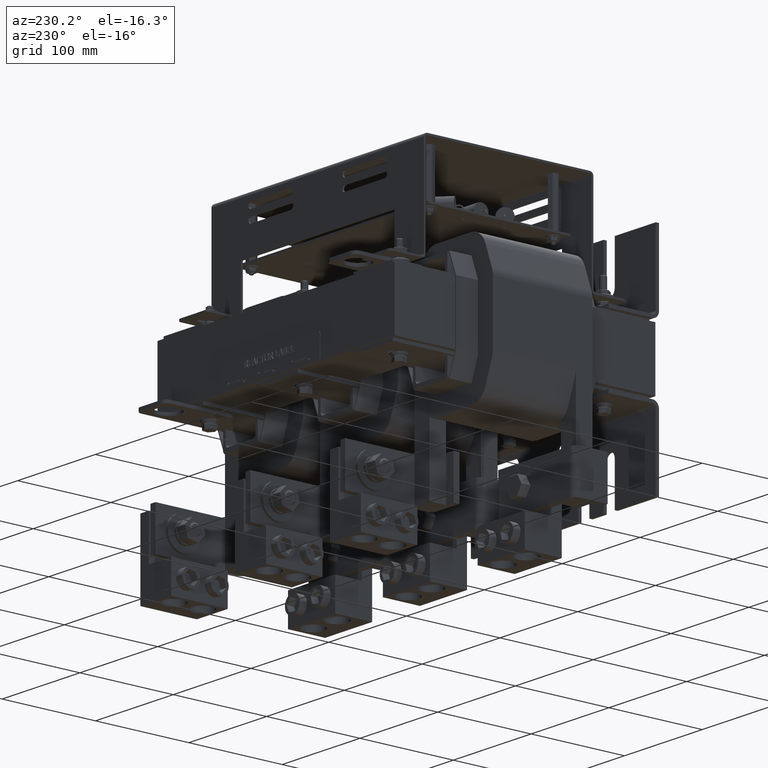
[diagram: clean part render]
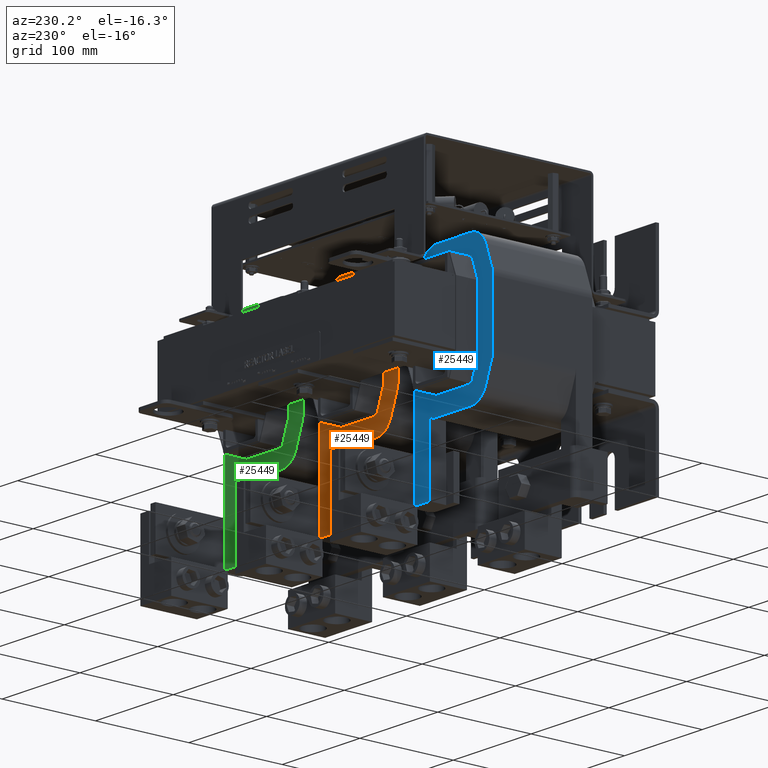
[diagram: same view with three faces highlighted in distinct colors, each labeled with its STEP entity id]
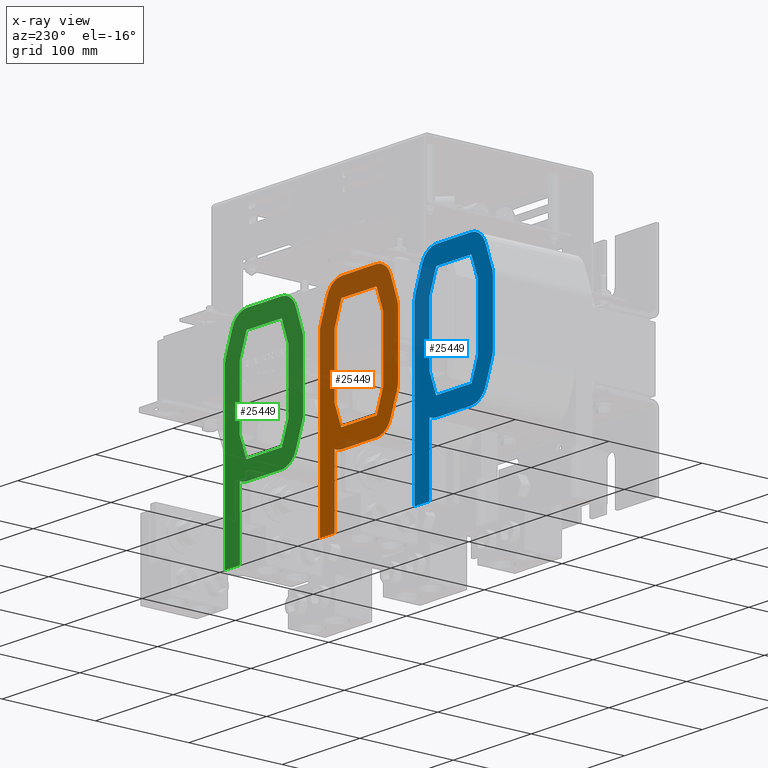
[diagram: x-ray of the same camera — body ghosted, the three highlighted faces saturated]
A machine part, auxiliary view with three faces highlighted in distinct colors.
The next image is the same camera in x-ray (body ghosted, the three faces saturated) — at least one of them is partly hidden behind the body in this view.
Their STEP definitions:

[orange] entity #25449 — the highlighted planar face has unit normal (-0, -1, -0).
#1757=FACE_BOUND('',#4401,.T.);
#2085=PLANE('',#27824);
#2946=FACE_OUTER_BOUND('',#4400,.T.);
#4400=EDGE_LOOP('',(#18188,#18189,#18190,#18191,#18192,#18193,#18194,#18195,
#18196,#18197,#18198,#18199,#18200,#18201,#18202,#18203,#18204,#18205,#18206,
#18207));
#4401=EDGE_LOOP('',(#18208,#18209,#18210,#18211,#18212,#18213,#18214,#18215,
#18216,#18217,#18218,#18219,#18220,#18221,#18222,#18223,#18224));
#6124=LINE('',#37335,#8527);
#6132=LINE('',#37353,#8535);
#6145=LINE('',#37385,#8548);
#6147=LINE('',#37389,#8550);
#6149=LINE('',#37393,#8552);
#6151=LINE('',#37397,#8554);
#6153=LINE('',#37401,#8556);
#6171=LINE('',#37448,#8574);
#6177=LINE('',#37462,#8580);
#6196=LINE('',#37527,#8599);
#6199=LINE('',#37535,#8602);
#6202=LINE('',#37543,#8605);
#6205=LINE('',#37551,#8608);
#6208=LINE('',#37559,#8611);
#6211=LINE('',#37566,#8614);
#6212=LINE('',#37569,#8615);
#6215=LINE('',#37576,#8618);
#6216=LINE('',#37581,#8619);
#6217=LINE('',#37584,#8620);
#6218=LINE('',#37588,#8621);
#6219=LINE('',#37592,#8622);
#6220=LINE('',#37596,#8623);
#8527=VECTOR('',#30332,0.393700787401575);
#8535=VECTOR('',#30344,0.393700787401575);
#8548=VECTOR('',#30371,0.393700787401575);
#8550=VECTOR('',#30375,0.393700787401575);
#8552=VECTOR('',#30379,0.393700787401575);
#8554=VECTOR('',#30383,0.393700787401575);
#8556=VECTOR('',#30387,0.393700787401575);
#8574=VECTOR('',#30431,0.393700787401575);
#8580=VECTOR('',#30443,0.393700787401575);
#8599=VECTOR('',#30500,0.393700787401575);
#8602=VECTOR('',#30509,0.393700787401575);
#8605=VECTOR('',#30518,0.393700787401575);
#8608=VECTOR('',#30527,0.393700787401575);
#8611=VECTOR('',#30536,0.393700787401575);
#8614=VECTOR('',#30545,0.393700787401575);
#8615=VECTOR('',#30548,0.393700787401575);
#8618=VECTOR('',#30557,0.393700787401575);
#8619=VECTOR('',#30562,0.393700787401575);
#8620=VECTOR('',#30565,0.393700787401575);
#8621=VECTOR('',#30568,0.393700787401575);
#8622=VECTOR('',#30571,0.393700787401575);
#8623=VECTOR('',#30574,0.393700787401575);
#10820=CIRCLE('',#27780,0.7799726404675);
#10824=CIRCLE('',#27788,0.768230282177347);
#10837=CIRCLE('',#27803,0.0285007705441579);
#10838=CIRCLE('',#27806,0.018230282177347);
#10839=CIRCLE('',#27809,0.0181194556531244);
#10840=CIRCLE('',#27812,0.0342087729675568);
#10841=CIRCLE('',#27815,0.0441353844211373);
#10842=CIRCLE('',#27818,0.0308204582025185);
#10843=CIRCLE('',#27822,0.0300049962999232);
#10844=CIRCLE('',#27825,0.780004996299923);
#10845=CIRCLE('',#27826,0.778500770544158);
#10846=CIRCLE('',#27827,0.768119455653124);
#10847=CIRCLE('',#27828,0.784208772967557);
#10848=CIRCLE('',#27829,0.794135384421137);
#10849=CIRCLE('',#27830,0.780820458202519);
#11699=VERTEX_POINT('',#37331);
#11701=VERTEX_POINT('',#37334);
#11707=VERTEX_POINT('',#37349);
#11709=VERTEX_POINT('',#37352);
#11720=VERTEX_POINT('',#37381);
#11721=VERTEX_POINT('',#37383);
#11722=VERTEX_POINT('',#37387);
#11723=VERTEX_POINT('',#37391);
#11724=VERTEX_POINT('',#37395);
#11725=VERTEX_POINT('',#37399);
#11741=VERTEX_POINT('',#37447);
#11745=VERTEX_POINT('',#37459);
#11746=VERTEX_POINT('',#37461);
#11748=VERTEX_POINT('',#37467);
#11771=VERTEX_POINT('',#37520);
#11772=VERTEX_POINT('',#37522);
#11773=VERTEX_POINT('',#37526);
#11774=VERTEX_POINT('',#37530);
#11775=VERTEX_POINT('',#37534);
#11776=VERTEX_POINT('',#37538);
#11777=VERTEX_POINT('',#37542);
#11778=VERTEX_POINT('',#37546);
#11779=VERTEX_POINT('',#37550);
#11780=VERTEX_POINT('',#37554);
#11781=VERTEX_POINT('',#37558);
#11782=VERTEX_POINT('',#37562);
#11783=VERTEX_POINT('',#37568);
#11784=VERTEX_POINT('',#37572);
#11785=VERTEX_POINT('',#37578);
#11786=VERTEX_POINT('',#37580);
#11787=VERTEX_POINT('',#37583);
#11788=VERTEX_POINT('',#37585);
#11789=VERTEX_POINT('',#37587);
#11790=VERTEX_POINT('',#37589);
#11791=VERTEX_POINT('',#37591);
#11792=VERTEX_POINT('',#37593);
#11793=VERTEX_POINT('',#37595);
#14148=EDGE_CURVE('',#11701,#11699,#6124,.T.);
#14156=EDGE_CURVE('',#11707,#11709,#6132,.T.);
#14172=EDGE_CURVE('',#11720,#11721,#6145,.T.);
#14174=EDGE_CURVE('',#11699,#11722,#6147,.T.);
#14176=EDGE_CURVE('',#11721,#11723,#6149,.T.);
#14178=EDGE_CURVE('',#11724,#11701,#6151,.T.);
#14180=EDGE_CURVE('',#11725,#11709,#6153,.T.);
#14199=EDGE_CURVE('',#11724,#11707,#10820,.T.);
#14203=EDGE_CURVE('',#11725,#11741,#6171,.T.);
#14210=EDGE_CURVE('',#11745,#11746,#6177,.T.);
#14214=EDGE_CURVE('',#11748,#11745,#10824,.T.);
#14242=EDGE_CURVE('',#11772,#11771,#10837,.T.);
#14244=EDGE_CURVE('',#11773,#11772,#6196,.T.);
#14246=EDGE_CURVE('',#11774,#11773,#10838,.T.);
#14248=EDGE_CURVE('',#11775,#11774,#6199,.T.);
#14250=EDGE_CURVE('',#11776,#11775,#10839,.T.);
#14252=EDGE_CURVE('',#11777,#11776,#6202,.T.);
#14254=EDGE_CURVE('',#11778,#11777,#10840,.T.);
#14256=EDGE_CURVE('',#11779,#11778,#6205,.T.);
#14258=EDGE_CURVE('',#11780,#11779,#10841,.T.);
#14260=EDGE_CURVE('',#11781,#11780,#6208,.T.);
#14262=EDGE_CURVE('',#11782,#11781,#10842,.T.);
#14264=EDGE_CURVE('',#11723,#11782,#6211,.T.);
#14265=EDGE_CURVE('',#11783,#11720,#6212,.T.);
#14267=EDGE_CURVE('',#11784,#11783,#10843,.T.);
#14269=EDGE_CURVE('',#11771,#11784,#6215,.T.);
#14270=EDGE_CURVE('',#11785,#11722,#10844,.T.);
#14271=EDGE_CURVE('',#11786,#11785,#6216,.T.);
#14272=EDGE_CURVE('',#11746,#11786,#10845,.T.);
#14273=EDGE_CURVE('',#11787,#11748,#6217,.T.);
#14274=EDGE_CURVE('',#11788,#11787,#10846,.T.);
#14275=EDGE_CURVE('',#11789,#11788,#6218,.T.);
#14276=EDGE_CURVE('',#11790,#11789,#10847,.T.);
#14277=EDGE_CURVE('',#11791,#11790,#6219,.T.);
#14278=EDGE_CURVE('',#11792,#11791,#10848,.T.);
#14279=EDGE_CURVE('',#11793,#11792,#6220,.T.);
#14280=EDGE_CURVE('',#11741,#11793,#10849,.T.);
#18188=ORIENTED_EDGE('',*,*,#14270,.F.);
#18189=ORIENTED_EDGE('',*,*,#14271,.F.);
#18190=ORIENTED_EDGE('',*,*,#14272,.F.);
#18191=ORIENTED_EDGE('',*,*,#14210,.F.);
#18192=ORIENTED_EDGE('',*,*,#14214,.F.);
#18193=ORIENTED_EDGE('',*,*,#14273,.F.);
#18194=ORIENTED_EDGE('',*,*,#14274,.F.);
#18195=ORIENTED_EDGE('',*,*,#14275,.F.);
#18196=ORIENTED_EDGE('',*,*,#14276,.F.);
#18197=ORIENTED_EDGE('',*,*,#14277,.F.);
#18198=ORIENTED_EDGE('',*,*,#14278,.F.);
#18199=ORIENTED_EDGE('',*,*,#14279,.F.);
#18200=ORIENTED_EDGE('',*,*,#14280,.F.);
#18201=ORIENTED_EDGE('',*,*,#14203,.F.);
#18202=ORIENTED_EDGE('',*,*,#14180,.T.);
#18203=ORIENTED_EDGE('',*,*,#14156,.F.);
#18204=ORIENTED_EDGE('',*,*,#14199,.F.);
#18205=ORIENTED_EDGE('',*,*,#14178,.T.);
#18206=ORIENTED_EDGE('',*,*,#14148,.T.);
#18207=ORIENTED_EDGE('',*,*,#14174,.T.);
#18208=ORIENTED_EDGE('',*,*,#14172,.T.);
#18209=ORIENTED_EDGE('',*,*,#14176,.T.);
#18210=ORIENTED_EDGE('',*,*,#14264,.T.);
#18211=ORIENTED_EDGE('',*,*,#14262,.T.);
#18212=ORIENTED_EDGE('',*,*,#14260,.T.);
#18213=ORIENTED_EDGE('',*,*,#14258,.T.);
#18214=ORIENTED_EDGE('',*,*,#14256,.T.);
#18215=ORIENTED_EDGE('',*,*,#14254,.T.);
#18216=ORIENTED_EDGE('',*,*,#14252,.T.);
#18217=ORIENTED_EDGE('',*,*,#14250,.T.);
#18218=ORIENTED_EDGE('',*,*,#14248,.T.);
#18219=ORIENTED_EDGE('',*,*,#14246,.T.);
#18220=ORIENTED_EDGE('',*,*,#14244,.T.);
#18221=ORIENTED_EDGE('',*,*,#14242,.T.);
#18222=ORIENTED_EDGE('',*,*,#14269,.T.);
#18223=ORIENTED_EDGE('',*,*,#14267,.T.);
#18224=ORIENTED_EDGE('',*,*,#14265,.T.);
#25449=ADVANCED_FACE('',(#2946,#1757),#2085,.F.);
#27780=AXIS2_PLACEMENT_3D('',#37440,#30423,#30424);
#27788=AXIS2_PLACEMENT_3D('',#37469,#30450,#30451);
#27803=AXIS2_PLACEMENT_3D('',#37523,#30495,#30496);
#27806=AXIS2_PLACEMENT_3D('',#37531,#30504,#30505);
#27809=AXIS2_PLACEMENT_3D('',#37539,#30513,#30514);
#27812=AXIS2_PLACEMENT_3D('',#37547,#30522,#30523);
#27815=AXIS2_PLACEMENT_3D('',#37555,#30531,#30532);
#27818=AXIS2_PLACEMENT_3D('',#37563,#30540,#30541);
#27822=AXIS2_PLACEMENT_3D('',#37573,#30552,#30553);
#27824=AXIS2_PLACEMENT_3D('',#37577,#30558,#30559);
#27825=AXIS2_PLACEMENT_3D('',#37579,#30560,#30561);
#27826=AXIS2_PLACEMENT_3D('',#37582,#30563,#30564);
#27827=AXIS2_PLACEMENT_3D('',#37586,#30566,#30567);
#27828=AXIS2_PLACEMENT_3D('',#37590,#30569,#30570);
#27829=AXIS2_PLACEMENT_3D('',#37594,#30572,#30573);
#27830=AXIS2_PLACEMENT_3D('',#37597,#30575,#30576);
#30332=DIRECTION('',(0.999999785429498,-0.000655088511442405,-9.20558386450323E-37));
#30344=DIRECTION('',(-0.000655088511442343,-0.999999785429498,0.));
#30371=DIRECTION('',(-0.000655088511442343,-0.999999785429498,0.));
#30375=DIRECTION('',(-0.000655088511442343,-0.999999785429498,0.));
#30379=DIRECTION('',(-0.999999785429498,0.000655088511442344,0.));
#30383=DIRECTION('',(0.000655088511442405,0.999999785429498,0.));
#30387=DIRECTION('',(-0.999999785429498,0.000655088511442344,0.));
#30423=DIRECTION('center_axis',(0.,0.,1.));
#30424=DIRECTION('ref_axis',(-0.937440761188099,0.348144825127529,0.));
#30431=DIRECTION('',(0.000108107634008213,-0.99999999415637,0.));
#30443=DIRECTION('',(-0.343377976362155,0.939197298414679,0.));
#30450=DIRECTION('center_axis',(0.,0.,1.));
#30451=DIRECTION('ref_axis',(0.999996915151978,-0.00248388536915243,0.));
#30495=DIRECTION('center_axis',(0.,0.,1.));
#30496=DIRECTION('ref_axis',(0.944876573169171,0.327426726881121,0.));
#30500=DIRECTION('',(-0.343377976362155,0.939197298414679,0.));
#30504=DIRECTION('center_axis',(0.,0.,1.));
#30505=DIRECTION('ref_axis',(0.999884770282325,-0.0151804531375525,0.));
#30509=DIRECTION('',(0.000171792120084277,0.999999985243734,0.));
#30513=DIRECTION('center_axis',(0.,0.,1.));
#30514=DIRECTION('ref_axis',(0.955332821155121,-0.295532063952117,0.));
#30518=DIRECTION('',(0.340289156967384,0.940320843994446,0.));
#30522=DIRECTION('center_axis',(0.,0.,1.));
#30523=DIRECTION('ref_axis',(0.0908520889796674,-0.995864397359415,0.));
#30527=DIRECTION('',(0.999999999351584,-3.60115427070881E-5,0.));
#30531=DIRECTION('center_axis',(0.,0.,1.));
#30532=DIRECTION('ref_axis',(-0.974422836775988,-0.224722351290288,0.));
#30536=DIRECTION('',(0.341450656940083,-0.939899701497551,0.));
#30540=DIRECTION('center_axis',(0.,0.,1.));
#30541=DIRECTION('ref_axis',(-0.999981239146098,0.00612546780528439,0.));
#30545=DIRECTION('',(0.000108107626538291,-0.999999994156371,0.));
#30548=DIRECTION('',(-0.348144825127529,-0.937440761188099,0.));
#30552=DIRECTION('center_axis',(0.,0.,1.));
#30553=DIRECTION('ref_axis',(0.000655088511427471,0.999999785429498,0.));
#30557=DIRECTION('',(-0.999999785429498,0.00065508851144239,0.));
#30558=DIRECTION('center_axis',(0.,0.,1.));
#30559=DIRECTION('ref_axis',(1.,0.,0.));
#30560=DIRECTION('center_axis',(0.,0.,1.));
#30561=DIRECTION('ref_axis',(0.000655088511441844,0.999999785429498,0.));
#30562=DIRECTION('',(-0.999999785429498,0.000655088511442344,0.));
#30563=DIRECTION('center_axis',(0.,0.,1.));
#30564=DIRECTION('ref_axis',(0.938079916076944,0.346418924213261,0.));
#30565=DIRECTION('',(0.000171792120084635,0.999999985243734,0.));
#30566=DIRECTION('center_axis',(0.,0.,1.));
#30567=DIRECTION('ref_axis',(0.93782886534404,-0.347097996720683,0.));
#30568=DIRECTION('',(0.340289156967384,0.940320843994446,0.));
#30569=DIRECTION('center_axis',(0.,0.,1.));
#30570=DIRECTION('ref_axis',(0.0189655633861012,-0.999820137527469,0.));
#30571=DIRECTION('',(0.999999999351584,-3.60115427072337E-5,0.));
#30572=DIRECTION('center_axis',(0.,0.,1.));
#30573=DIRECTION('ref_axis',(-0.94931018365161,-0.314340858329533,0.));
#30574=DIRECTION('',(0.341450656940083,-0.939899701497551,0.));
#30575=DIRECTION('center_axis',(0.,0.,1.));
#30576=DIRECTION('ref_axis',(-0.999999361148014,0.00113035550344365,0.));
#37331=CARTESIAN_POINT('',(-0.0301239171433851,6.91025072926536,-2.1));
#37334=CARTESIAN_POINT('',(-0.781991763706727,6.91074326935945,-2.1));
#37335=CARTESIAN_POINT('',(-0.0301239171433851,6.91025072926536,-2.1));
#37349=CARTESIAN_POINT('',(-0.784880598404627,2.50090547250795,-2.1));
#37352=CARTESIAN_POINT('',(-0.785103434136078,2.16074428856934,-2.1));
#37353=CARTESIAN_POINT('',(-0.783793257113193,4.16074385942833,-2.1));
#37381=CARTESIAN_POINT('',(-0.0330055375071033,2.51142569253406,-2.1));
#37383=CARTESIAN_POINT('',(-0.033235587572736,2.16025174847524,-2.1));
#37385=CARTESIAN_POINT('',(-0.0319254105498513,4.16025131933424,-2.1));
#37387=CARTESIAN_POINT('',(-0.031981069216059,4.07528775594891,-2.1));
#37389=CARTESIAN_POINT('',(-0.0319254105498513,4.16025131933424,-2.1));
#37391=CARTESIAN_POINT('',(-0.0348437668513175,2.16025280197524,-2.1));
#37393=CARTESIAN_POINT('',(-0.033235587572736,2.16025174847525,-2.1));
#37395=CARTESIAN_POINT('',(-0.784880207741646,2.50150182382656,-2.1));
#37397=CARTESIAN_POINT('',(-0.783793257113194,4.16074385942833,-2.1));
#37399=CARTESIAN_POINT('',(-0.78484382436525,2.16074411850192,-2.1));
#37401=CARTESIAN_POINT('',(-0.033235587572736,2.16025174847525,-2.1));
#37440=CARTESIAN_POINT('Origin',(-0.00490796261243304,2.5009908728599,-2.1));
#37447=CARTESIAN_POINT('',(-0.784610143968636,-0.000809016876357775,-2.1));
#37448=CARTESIAN_POINT('',(-0.784880598404627,2.50090547250795,-2.1));
#37459=CARTESIAN_POINT('',(3.12724292863744,2.76970837907586,-2.1));
#37461=CARTESIAN_POINT('',(2.80537815845659,3.65006339139002,-2.1));
#37462=CARTESIAN_POINT('',(3.12724292863744,2.76970837907586,-2.1));
#37467=CARTESIAN_POINT('',(3.1749362941218,2.50132742035554,-2.1));
#37469=CARTESIAN_POINT('Origin',(2.40670838181812,2.50323561631358,-2.1));
#37520=CARTESIAN_POINT('',(2.0756801399679,3.40887048992728,-2.1));
#37522=CARTESIAN_POINT('',(2.10201193136313,3.38970790597178,-2.1));
#37523=CARTESIAN_POINT('Origin',(2.07508222095869,3.38037599195892,-2.1));
#37526=CARTESIAN_POINT('',(2.42397622895945,2.50908066921064,-2.1));
#37527=CARTESIAN_POINT('',(2.396082341599,2.5853752060029,-2.1));
#37530=CARTESIAN_POINT('',(2.42493656332521,2.5029588723693,-2.1));
#37531=CARTESIAN_POINT('Origin',(2.40670838181812,2.50323561631358,-2.1));
#37534=CARTESIAN_POINT('',(2.42450604545494,-0.00308077428525311,-2.1));
#37535=CARTESIAN_POINT('',(2.42482760491797,1.86871321796757,-2.1));
#37538=CARTESIAN_POINT('',(2.42370012493949,-0.0087879137502401,-2.1));
#37539=CARTESIAN_POINT('Origin',(2.4063900142526,-0.00343303362338343,-2.1));
#37542=CARTESIAN_POINT('',(2.09392845506983,-0.920045791317628,-2.1));
#37543=CARTESIAN_POINT('',(2.55154693340086,0.344491103147483,-2.1));
#37546=CARTESIAN_POINT('',(2.0635182179735,-0.9472740806983,-2.1));
#37547=CARTESIAN_POINT('Origin',(2.06041027948797,-0.913206781622558,-2.1));
#37550=CARTESIAN_POINT('',(0.333653867491344,-0.947211785614324,-2.1));
#37551=CARTESIAN_POINT('',(1.62959711190879,-0.947258454529847,-2.1));
#37554=CARTESIAN_POINT('',(0.294562105045828,-0.913168569199795,-2.1));
#37555=CARTESIAN_POINT('Origin',(0.337568631535672,-0.903250361837576,-2.1));
#37558=CARTESIAN_POINT('',(-0.0330944654954606,-0.0112393838665542,-2.1));
#37559=CARTESIAN_POINT('',(0.00244283309246462,-0.109061706524091,-2.1));
#37562=CARTESIAN_POINT('',(-0.0346100645792228,-0.00150283185402474,-2.1));
#37563=CARTESIAN_POINT('Origin',(-0.00379018459481753,-0.00169162157848839,
-2.1));
#37566=CARTESIAN_POINT('',(-0.0346768777141815,0.616521415904538,-2.1));
#37568=CARTESIAN_POINT('',(0.293448665620288,3.39046066472041,-2.1));
#37569=CARTESIAN_POINT('',(-0.166882576943975,2.15093837605783,-2.1));
#37572=CARTESIAN_POINT('',(0.321596228118829,3.4100195703926,-2.1));
#37573=CARTESIAN_POINT('Origin',(0.321576572190468,3.38001458053086,-2.1));
#37576=CARTESIAN_POINT('',(0.759387736849627,3.40973277814329,-2.1));
#37577=CARTESIAN_POINT('Origin',(1.19575458020407,1.23467868991142,-2.1));
#37578=CARTESIAN_POINT('',(0.322087544502411,4.16001940946472,-2.1));
#37579=CARTESIAN_POINT('Origin',(0.321576572190468,3.38001458053086,-2.1));
#37580=CARTESIAN_POINT('',(2.07861974913728,4.15886872515059,-2.1));
#37581=CARTESIAN_POINT('',(2.07861974913728,4.15886872515059,-2.1));
#37582=CARTESIAN_POINT('Origin',(2.07508222095869,3.38037599195892,-2.1));
#37583=CARTESIAN_POINT('',(3.17450637084772,-0.00125108864530396,-2.1));
#37584=CARTESIAN_POINT('',(3.17450637084772,-0.00125108864530396,-2.1));
#37585=CARTESIAN_POINT('',(3.12675461179645,-0.270045757922764,-2.1));
#37586=CARTESIAN_POINT('Origin',(2.4063900142526,-0.00343303362338343,-2.1));
#37587=CARTESIAN_POINT('',(2.80560250656337,-1.15748519717678,-2.1));
#37588=CARTESIAN_POINT('',(2.80560250656337,-1.15748519717678,-2.1));
#37589=CARTESIAN_POINT('',(2.07528324067962,-1.69727450486123,-2.1));
#37590=CARTESIAN_POINT('Origin',(2.06041027948797,-0.913206781622558,-2.1));
#37591=CARTESIAN_POINT('',(0.320925512109393,-1.69721132773292,-2.1));
#37592=CARTESIAN_POINT('',(0.320925512109393,-1.69721132773292,-2.1));
#37593=CARTESIAN_POINT('',(-0.416312176093399,-1.15287956020637,-2.1));
#37594=CARTESIAN_POINT('Origin',(0.337568631535672,-0.903250361837576,-2.1));
#37595=CARTESIAN_POINT('',(-0.73589293719982,-0.273180382995548,-2.1));
#37596=CARTESIAN_POINT('',(-0.73589293719982,-0.273180382995548,-2.1));
#37597=CARTESIAN_POINT('Origin',(-0.00379018459481753,-0.00169162157848839,
-2.1));

[blue] entity #25449 — the highlighted planar face has unit normal (-0, -1, -0).
#1757=FACE_BOUND('',#4401,.T.);
#2085=PLANE('',#27824);
#2946=FACE_OUTER_BOUND('',#4400,.T.);
#4400=EDGE_LOOP('',(#18188,#18189,#18190,#18191,#18192,#18193,#18194,#18195,
#18196,#18197,#18198,#18199,#18200,#18201,#18202,#18203,#18204,#18205,#18206,
#18207));
#4401=EDGE_LOOP('',(#18208,#18209,#18210,#18211,#18212,#18213,#18214,#18215,
#18216,#18217,#18218,#18219,#18220,#18221,#18222,#18223,#18224));
#6124=LINE('',#37335,#8527);
#6132=LINE('',#37353,#8535);
#6145=LINE('',#37385,#8548);
#6147=LINE('',#37389,#8550);
#6149=LINE('',#37393,#8552);
#6151=LINE('',#37397,#8554);
#6153=LINE('',#37401,#8556);
#6171=LINE('',#37448,#8574);
#6177=LINE('',#37462,#8580);
#6196=LINE('',#37527,#8599);
#6199=LINE('',#37535,#8602);
#6202=LINE('',#37543,#8605);
#6205=LINE('',#37551,#8608);
#6208=LINE('',#37559,#8611);
#6211=LINE('',#37566,#8614);
#6212=LINE('',#37569,#8615);
#6215=LINE('',#37576,#8618);
#6216=LINE('',#37581,#8619);
#6217=LINE('',#37584,#8620);
#6218=LINE('',#37588,#8621);
#6219=LINE('',#37592,#8622);
#6220=LINE('',#37596,#8623);
#8527=VECTOR('',#30332,0.393700787401575);
#8535=VECTOR('',#30344,0.393700787401575);
#8548=VECTOR('',#30371,0.393700787401575);
#8550=VECTOR('',#30375,0.393700787401575);
#8552=VECTOR('',#30379,0.393700787401575);
#8554=VECTOR('',#30383,0.393700787401575);
#8556=VECTOR('',#30387,0.393700787401575);
#8574=VECTOR('',#30431,0.393700787401575);
#8580=VECTOR('',#30443,0.393700787401575);
#8599=VECTOR('',#30500,0.393700787401575);
#8602=VECTOR('',#30509,0.393700787401575);
#8605=VECTOR('',#30518,0.393700787401575);
#8608=VECTOR('',#30527,0.393700787401575);
#8611=VECTOR('',#30536,0.393700787401575);
#8614=VECTOR('',#30545,0.393700787401575);
#8615=VECTOR('',#30548,0.393700787401575);
#8618=VECTOR('',#30557,0.393700787401575);
#8619=VECTOR('',#30562,0.393700787401575);
#8620=VECTOR('',#30565,0.393700787401575);
#8621=VECTOR('',#30568,0.393700787401575);
#8622=VECTOR('',#30571,0.393700787401575);
#8623=VECTOR('',#30574,0.393700787401575);
#10820=CIRCLE('',#27780,0.7799726404675);
#10824=CIRCLE('',#27788,0.768230282177347);
#10837=CIRCLE('',#27803,0.0285007705441579);
#10838=CIRCLE('',#27806,0.018230282177347);
#10839=CIRCLE('',#27809,0.0181194556531244);
#10840=CIRCLE('',#27812,0.0342087729675568);
#10841=CIRCLE('',#27815,0.0441353844211373);
#10842=CIRCLE('',#27818,0.0308204582025185);
#10843=CIRCLE('',#27822,0.0300049962999232);
#10844=CIRCLE('',#27825,0.780004996299923);
#10845=CIRCLE('',#27826,0.778500770544158);
#10846=CIRCLE('',#27827,0.768119455653124);
#10847=CIRCLE('',#27828,0.784208772967557);
#10848=CIRCLE('',#27829,0.794135384421137);
#10849=CIRCLE('',#27830,0.780820458202519);
#11699=VERTEX_POINT('',#37331);
#11701=VERTEX_POINT('',#37334);
#11707=VERTEX_POINT('',#37349);
#11709=VERTEX_POINT('',#37352);
#11720=VERTEX_POINT('',#37381);
#11721=VERTEX_POINT('',#37383);
#11722=VERTEX_POINT('',#37387);
#11723=VERTEX_POINT('',#37391);
#11724=VERTEX_POINT('',#37395);
#11725=VERTEX_POINT('',#37399);
#11741=VERTEX_POINT('',#37447);
#11745=VERTEX_POINT('',#37459);
#11746=VERTEX_POINT('',#37461);
#11748=VERTEX_POINT('',#37467);
#11771=VERTEX_POINT('',#37520);
#11772=VERTEX_POINT('',#37522);
#11773=VERTEX_POINT('',#37526);
#11774=VERTEX_POINT('',#37530);
#11775=VERTEX_POINT('',#37534);
#11776=VERTEX_POINT('',#37538);
#11777=VERTEX_POINT('',#37542);
#11778=VERTEX_POINT('',#37546);
#11779=VERTEX_POINT('',#37550);
#11780=VERTEX_POINT('',#37554);
#11781=VERTEX_POINT('',#37558);
#11782=VERTEX_POINT('',#37562);
#11783=VERTEX_POINT('',#37568);
#11784=VERTEX_POINT('',#37572);
#11785=VERTEX_POINT('',#37578);
#11786=VERTEX_POINT('',#37580);
#11787=VERTEX_POINT('',#37583);
#11788=VERTEX_POINT('',#37585);
#11789=VERTEX_POINT('',#37587);
#11790=VERTEX_POINT('',#37589);
#11791=VERTEX_POINT('',#37591);
#11792=VERTEX_POINT('',#37593);
#11793=VERTEX_POINT('',#37595);
#14148=EDGE_CURVE('',#11701,#11699,#6124,.T.);
#14156=EDGE_CURVE('',#11707,#11709,#6132,.T.);
#14172=EDGE_CURVE('',#11720,#11721,#6145,.T.);
#14174=EDGE_CURVE('',#11699,#11722,#6147,.T.);
#14176=EDGE_CURVE('',#11721,#11723,#6149,.T.);
#14178=EDGE_CURVE('',#11724,#11701,#6151,.T.);
#14180=EDGE_CURVE('',#11725,#11709,#6153,.T.);
#14199=EDGE_CURVE('',#11724,#11707,#10820,.T.);
#14203=EDGE_CURVE('',#11725,#11741,#6171,.T.);
#14210=EDGE_CURVE('',#11745,#11746,#6177,.T.);
#14214=EDGE_CURVE('',#11748,#11745,#10824,.T.);
#14242=EDGE_CURVE('',#11772,#11771,#10837,.T.);
#14244=EDGE_CURVE('',#11773,#11772,#6196,.T.);
#14246=EDGE_CURVE('',#11774,#11773,#10838,.T.);
#14248=EDGE_CURVE('',#11775,#11774,#6199,.T.);
#14250=EDGE_CURVE('',#11776,#11775,#10839,.T.);
#14252=EDGE_CURVE('',#11777,#11776,#6202,.T.);
#14254=EDGE_CURVE('',#11778,#11777,#10840,.T.);
#14256=EDGE_CURVE('',#11779,#11778,#6205,.T.);
#14258=EDGE_CURVE('',#11780,#11779,#10841,.T.);
#14260=EDGE_CURVE('',#11781,#11780,#6208,.T.);
#14262=EDGE_CURVE('',#11782,#11781,#10842,.T.);
#14264=EDGE_CURVE('',#11723,#11782,#6211,.T.);
#14265=EDGE_CURVE('',#11783,#11720,#6212,.T.);
#14267=EDGE_CURVE('',#11784,#11783,#10843,.T.);
#14269=EDGE_CURVE('',#11771,#11784,#6215,.T.);
#14270=EDGE_CURVE('',#11785,#11722,#10844,.T.);
#14271=EDGE_CURVE('',#11786,#11785,#6216,.T.);
#14272=EDGE_CURVE('',#11746,#11786,#10845,.T.);
#14273=EDGE_CURVE('',#11787,#11748,#6217,.T.);
#14274=EDGE_CURVE('',#11788,#11787,#10846,.T.);
#14275=EDGE_CURVE('',#11789,#11788,#6218,.T.);
#14276=EDGE_CURVE('',#11790,#11789,#10847,.T.);
#14277=EDGE_CURVE('',#11791,#11790,#6219,.T.);
#14278=EDGE_CURVE('',#11792,#11791,#10848,.T.);
#14279=EDGE_CURVE('',#11793,#11792,#6220,.T.);
#14280=EDGE_CURVE('',#11741,#11793,#10849,.T.);
#18188=ORIENTED_EDGE('',*,*,#14270,.F.);
#18189=ORIENTED_EDGE('',*,*,#14271,.F.);
#18190=ORIENTED_EDGE('',*,*,#14272,.F.);
#18191=ORIENTED_EDGE('',*,*,#14210,.F.);
#18192=ORIENTED_EDGE('',*,*,#14214,.F.);
#18193=ORIENTED_EDGE('',*,*,#14273,.F.);
#18194=ORIENTED_EDGE('',*,*,#14274,.F.);
#18195=ORIENTED_EDGE('',*,*,#14275,.F.);
#18196=ORIENTED_EDGE('',*,*,#14276,.F.);
#18197=ORIENTED_EDGE('',*,*,#14277,.F.);
#18198=ORIENTED_EDGE('',*,*,#14278,.F.);
#18199=ORIENTED_EDGE('',*,*,#14279,.F.);
#18200=ORIENTED_EDGE('',*,*,#14280,.F.);
#18201=ORIENTED_EDGE('',*,*,#14203,.F.);
#18202=ORIENTED_EDGE('',*,*,#14180,.T.);
#18203=ORIENTED_EDGE('',*,*,#14156,.F.);
#18204=ORIENTED_EDGE('',*,*,#14199,.F.);
#18205=ORIENTED_EDGE('',*,*,#14178,.T.);
#18206=ORIENTED_EDGE('',*,*,#14148,.T.);
#18207=ORIENTED_EDGE('',*,*,#14174,.T.);
#18208=ORIENTED_EDGE('',*,*,#14172,.T.);
#18209=ORIENTED_EDGE('',*,*,#14176,.T.);
#18210=ORIENTED_EDGE('',*,*,#14264,.T.);
#18211=ORIENTED_EDGE('',*,*,#14262,.T.);
#18212=ORIENTED_EDGE('',*,*,#14260,.T.);
#18213=ORIENTED_EDGE('',*,*,#14258,.T.);
#18214=ORIENTED_EDGE('',*,*,#14256,.T.);
#18215=ORIENTED_EDGE('',*,*,#14254,.T.);
#18216=ORIENTED_EDGE('',*,*,#14252,.T.);
#18217=ORIENTED_EDGE('',*,*,#14250,.T.);
#18218=ORIENTED_EDGE('',*,*,#14248,.T.);
#18219=ORIENTED_EDGE('',*,*,#14246,.T.);
#18220=ORIENTED_EDGE('',*,*,#14244,.T.);
#18221=ORIENTED_EDGE('',*,*,#14242,.T.);
#18222=ORIENTED_EDGE('',*,*,#14269,.T.);
#18223=ORIENTED_EDGE('',*,*,#14267,.T.);
#18224=ORIENTED_EDGE('',*,*,#14265,.T.);
#25449=ADVANCED_FACE('',(#2946,#1757),#2085,.F.);
#27780=AXIS2_PLACEMENT_3D('',#37440,#30423,#30424);
#27788=AXIS2_PLACEMENT_3D('',#37469,#30450,#30451);
#27803=AXIS2_PLACEMENT_3D('',#37523,#30495,#30496);
#27806=AXIS2_PLACEMENT_3D('',#37531,#30504,#30505);
#27809=AXIS2_PLACEMENT_3D('',#37539,#30513,#30514);
#27812=AXIS2_PLACEMENT_3D('',#37547,#30522,#30523);
#27815=AXIS2_PLACEMENT_3D('',#37555,#30531,#30532);
#27818=AXIS2_PLACEMENT_3D('',#37563,#30540,#30541);
#27822=AXIS2_PLACEMENT_3D('',#37573,#30552,#30553);
#27824=AXIS2_PLACEMENT_3D('',#37577,#30558,#30559);
#27825=AXIS2_PLACEMENT_3D('',#37579,#30560,#30561);
#27826=AXIS2_PLACEMENT_3D('',#37582,#30563,#30564);
#27827=AXIS2_PLACEMENT_3D('',#37586,#30566,#30567);
#27828=AXIS2_PLACEMENT_3D('',#37590,#30569,#30570);
#27829=AXIS2_PLACEMENT_3D('',#37594,#30572,#30573);
#27830=AXIS2_PLACEMENT_3D('',#37597,#30575,#30576);
#30332=DIRECTION('',(0.999999785429498,-0.000655088511442405,-9.20558386450323E-37));
#30344=DIRECTION('',(-0.000655088511442343,-0.999999785429498,0.));
#30371=DIRECTION('',(-0.000655088511442343,-0.999999785429498,0.));
#30375=DIRECTION('',(-0.000655088511442343,-0.999999785429498,0.));
#30379=DIRECTION('',(-0.999999785429498,0.000655088511442344,0.));
#30383=DIRECTION('',(0.000655088511442405,0.999999785429498,0.));
#30387=DIRECTION('',(-0.999999785429498,0.000655088511442344,0.));
#30423=DIRECTION('center_axis',(0.,0.,1.));
#30424=DIRECTION('ref_axis',(-0.937440761188099,0.348144825127529,0.));
#30431=DIRECTION('',(0.000108107634008213,-0.99999999415637,0.));
#30443=DIRECTION('',(-0.343377976362155,0.939197298414679,0.));
#30450=DIRECTION('center_axis',(0.,0.,1.));
#30451=DIRECTION('ref_axis',(0.999996915151978,-0.00248388536915243,0.));
#30495=DIRECTION('center_axis',(0.,0.,1.));
#30496=DIRECTION('ref_axis',(0.944876573169171,0.327426726881121,0.));
#30500=DIRECTION('',(-0.343377976362155,0.939197298414679,0.));
#30504=DIRECTION('center_axis',(0.,0.,1.));
#30505=DIRECTION('ref_axis',(0.999884770282325,-0.0151804531375525,0.));
#30509=DIRECTION('',(0.000171792120084277,0.999999985243734,0.));
#30513=DIRECTION('center_axis',(0.,0.,1.));
#30514=DIRECTION('ref_axis',(0.955332821155121,-0.295532063952117,0.));
#30518=DIRECTION('',(0.340289156967384,0.940320843994446,0.));
#30522=DIRECTION('center_axis',(0.,0.,1.));
#30523=DIRECTION('ref_axis',(0.0908520889796674,-0.995864397359415,0.));
#30527=DIRECTION('',(0.999999999351584,-3.60115427070881E-5,0.));
#30531=DIRECTION('center_axis',(0.,0.,1.));
#30532=DIRECTION('ref_axis',(-0.974422836775988,-0.224722351290288,0.));
#30536=DIRECTION('',(0.341450656940083,-0.939899701497551,0.));
#30540=DIRECTION('center_axis',(0.,0.,1.));
#30541=DIRECTION('ref_axis',(-0.999981239146098,0.00612546780528439,0.));
#30545=DIRECTION('',(0.000108107626538291,-0.999999994156371,0.));
#30548=DIRECTION('',(-0.348144825127529,-0.937440761188099,0.));
#30552=DIRECTION('center_axis',(0.,0.,1.));
#30553=DIRECTION('ref_axis',(0.000655088511427471,0.999999785429498,0.));
#30557=DIRECTION('',(-0.999999785429498,0.00065508851144239,0.));
#30558=DIRECTION('center_axis',(0.,0.,1.));
#30559=DIRECTION('ref_axis',(1.,0.,0.));
#30560=DIRECTION('center_axis',(0.,0.,1.));
#30561=DIRECTION('ref_axis',(0.000655088511441844,0.999999785429498,0.));
#30562=DIRECTION('',(-0.999999785429498,0.000655088511442344,0.));
#30563=DIRECTION('center_axis',(0.,0.,1.));
#30564=DIRECTION('ref_axis',(0.938079916076944,0.346418924213261,0.));
#30565=DIRECTION('',(0.000171792120084635,0.999999985243734,0.));
#30566=DIRECTION('center_axis',(0.,0.,1.));
#30567=DIRECTION('ref_axis',(0.93782886534404,-0.347097996720683,0.));
#30568=DIRECTION('',(0.340289156967384,0.940320843994446,0.));
#30569=DIRECTION('center_axis',(0.,0.,1.));
#30570=DIRECTION('ref_axis',(0.0189655633861012,-0.999820137527469,0.));
#30571=DIRECTION('',(0.999999999351584,-3.60115427072337E-5,0.));
#30572=DIRECTION('center_axis',(0.,0.,1.));
#30573=DIRECTION('ref_axis',(-0.94931018365161,-0.314340858329533,0.));
#30574=DIRECTION('',(0.341450656940083,-0.939899701497551,0.));
#30575=DIRECTION('center_axis',(0.,0.,1.));
#30576=DIRECTION('ref_axis',(-0.999999361148014,0.00113035550344365,0.));
#37331=CARTESIAN_POINT('',(-0.0301239171433851,6.91025072926536,-2.1));
#37334=CARTESIAN_POINT('',(-0.781991763706727,6.91074326935945,-2.1));
#37335=CARTESIAN_POINT('',(-0.0301239171433851,6.91025072926536,-2.1));
#37349=CARTESIAN_POINT('',(-0.784880598404627,2.50090547250795,-2.1));
#37352=CARTESIAN_POINT('',(-0.785103434136078,2.16074428856934,-2.1));
#37353=CARTESIAN_POINT('',(-0.783793257113193,4.16074385942833,-2.1));
#37381=CARTESIAN_POINT('',(-0.0330055375071033,2.51142569253406,-2.1));
#37383=CARTESIAN_POINT('',(-0.033235587572736,2.16025174847524,-2.1));
#37385=CARTESIAN_POINT('',(-0.0319254105498513,4.16025131933424,-2.1));
#37387=CARTESIAN_POINT('',(-0.031981069216059,4.07528775594891,-2.1));
#37389=CARTESIAN_POINT('',(-0.0319254105498513,4.16025131933424,-2.1));
#37391=CARTESIAN_POINT('',(-0.0348437668513175,2.16025280197524,-2.1));
#37393=CARTESIAN_POINT('',(-0.033235587572736,2.16025174847525,-2.1));
#37395=CARTESIAN_POINT('',(-0.784880207741646,2.50150182382656,-2.1));
#37397=CARTESIAN_POINT('',(-0.783793257113194,4.16074385942833,-2.1));
#37399=CARTESIAN_POINT('',(-0.78484382436525,2.16074411850192,-2.1));
#37401=CARTESIAN_POINT('',(-0.033235587572736,2.16025174847525,-2.1));
#37440=CARTESIAN_POINT('Origin',(-0.00490796261243304,2.5009908728599,-2.1));
#37447=CARTESIAN_POINT('',(-0.784610143968636,-0.000809016876357775,-2.1));
#37448=CARTESIAN_POINT('',(-0.784880598404627,2.50090547250795,-2.1));
#37459=CARTESIAN_POINT('',(3.12724292863744,2.76970837907586,-2.1));
#37461=CARTESIAN_POINT('',(2.80537815845659,3.65006339139002,-2.1));
#37462=CARTESIAN_POINT('',(3.12724292863744,2.76970837907586,-2.1));
#37467=CARTESIAN_POINT('',(3.1749362941218,2.50132742035554,-2.1));
#37469=CARTESIAN_POINT('Origin',(2.40670838181812,2.50323561631358,-2.1));
#37520=CARTESIAN_POINT('',(2.0756801399679,3.40887048992728,-2.1));
#37522=CARTESIAN_POINT('',(2.10201193136313,3.38970790597178,-2.1));
#37523=CARTESIAN_POINT('Origin',(2.07508222095869,3.38037599195892,-2.1));
#37526=CARTESIAN_POINT('',(2.42397622895945,2.50908066921064,-2.1));
#37527=CARTESIAN_POINT('',(2.396082341599,2.5853752060029,-2.1));
#37530=CARTESIAN_POINT('',(2.42493656332521,2.5029588723693,-2.1));
#37531=CARTESIAN_POINT('Origin',(2.40670838181812,2.50323561631358,-2.1));
#37534=CARTESIAN_POINT('',(2.42450604545494,-0.00308077428525311,-2.1));
#37535=CARTESIAN_POINT('',(2.42482760491797,1.86871321796757,-2.1));
#37538=CARTESIAN_POINT('',(2.42370012493949,-0.0087879137502401,-2.1));
#37539=CARTESIAN_POINT('Origin',(2.4063900142526,-0.00343303362338343,-2.1));
#37542=CARTESIAN_POINT('',(2.09392845506983,-0.920045791317628,-2.1));
#37543=CARTESIAN_POINT('',(2.55154693340086,0.344491103147483,-2.1));
#37546=CARTESIAN_POINT('',(2.0635182179735,-0.9472740806983,-2.1));
#37547=CARTESIAN_POINT('Origin',(2.06041027948797,-0.913206781622558,-2.1));
#37550=CARTESIAN_POINT('',(0.333653867491344,-0.947211785614324,-2.1));
#37551=CARTESIAN_POINT('',(1.62959711190879,-0.947258454529847,-2.1));
#37554=CARTESIAN_POINT('',(0.294562105045828,-0.913168569199795,-2.1));
#37555=CARTESIAN_POINT('Origin',(0.337568631535672,-0.903250361837576,-2.1));
#37558=CARTESIAN_POINT('',(-0.0330944654954606,-0.0112393838665542,-2.1));
#37559=CARTESIAN_POINT('',(0.00244283309246462,-0.109061706524091,-2.1));
#37562=CARTESIAN_POINT('',(-0.0346100645792228,-0.00150283185402474,-2.1));
#37563=CARTESIAN_POINT('Origin',(-0.00379018459481753,-0.00169162157848839,
-2.1));
#37566=CARTESIAN_POINT('',(-0.0346768777141815,0.616521415904538,-2.1));
#37568=CARTESIAN_POINT('',(0.293448665620288,3.39046066472041,-2.1));
#37569=CARTESIAN_POINT('',(-0.166882576943975,2.15093837605783,-2.1));
#37572=CARTESIAN_POINT('',(0.321596228118829,3.4100195703926,-2.1));
#37573=CARTESIAN_POINT('Origin',(0.321576572190468,3.38001458053086,-2.1));
#37576=CARTESIAN_POINT('',(0.759387736849627,3.40973277814329,-2.1));
#37577=CARTESIAN_POINT('Origin',(1.19575458020407,1.23467868991142,-2.1));
#37578=CARTESIAN_POINT('',(0.322087544502411,4.16001940946472,-2.1));
#37579=CARTESIAN_POINT('Origin',(0.321576572190468,3.38001458053086,-2.1));
#37580=CARTESIAN_POINT('',(2.07861974913728,4.15886872515059,-2.1));
#37581=CARTESIAN_POINT('',(2.07861974913728,4.15886872515059,-2.1));
#37582=CARTESIAN_POINT('Origin',(2.07508222095869,3.38037599195892,-2.1));
#37583=CARTESIAN_POINT('',(3.17450637084772,-0.00125108864530396,-2.1));
#37584=CARTESIAN_POINT('',(3.17450637084772,-0.00125108864530396,-2.1));
#37585=CARTESIAN_POINT('',(3.12675461179645,-0.270045757922764,-2.1));
#37586=CARTESIAN_POINT('Origin',(2.4063900142526,-0.00343303362338343,-2.1));
#37587=CARTESIAN_POINT('',(2.80560250656337,-1.15748519717678,-2.1));
#37588=CARTESIAN_POINT('',(2.80560250656337,-1.15748519717678,-2.1));
#37589=CARTESIAN_POINT('',(2.07528324067962,-1.69727450486123,-2.1));
#37590=CARTESIAN_POINT('Origin',(2.06041027948797,-0.913206781622558,-2.1));
#37591=CARTESIAN_POINT('',(0.320925512109393,-1.69721132773292,-2.1));
#37592=CARTESIAN_POINT('',(0.320925512109393,-1.69721132773292,-2.1));
#37593=CARTESIAN_POINT('',(-0.416312176093399,-1.15287956020637,-2.1));
#37594=CARTESIAN_POINT('Origin',(0.337568631535672,-0.903250361837576,-2.1));
#37595=CARTESIAN_POINT('',(-0.73589293719982,-0.273180382995548,-2.1));
#37596=CARTESIAN_POINT('',(-0.73589293719982,-0.273180382995548,-2.1));
#37597=CARTESIAN_POINT('Origin',(-0.00379018459481753,-0.00169162157848839,
-2.1));

[green] entity #25449 — the highlighted planar face has unit normal (-0, -1, -0).
#1757=FACE_BOUND('',#4401,.T.);
#2085=PLANE('',#27824);
#2946=FACE_OUTER_BOUND('',#4400,.T.);
#4400=EDGE_LOOP('',(#18188,#18189,#18190,#18191,#18192,#18193,#18194,#18195,
#18196,#18197,#18198,#18199,#18200,#18201,#18202,#18203,#18204,#18205,#18206,
#18207));
#4401=EDGE_LOOP('',(#18208,#18209,#18210,#18211,#18212,#18213,#18214,#18215,
#18216,#18217,#18218,#18219,#18220,#18221,#18222,#18223,#18224));
#6124=LINE('',#37335,#8527);
#6132=LINE('',#37353,#8535);
#6145=LINE('',#37385,#8548);
#6147=LINE('',#37389,#8550);
#6149=LINE('',#37393,#8552);
#6151=LINE('',#37397,#8554);
#6153=LINE('',#37401,#8556);
#6171=LINE('',#37448,#8574);
#6177=LINE('',#37462,#8580);
#6196=LINE('',#37527,#8599);
#6199=LINE('',#37535,#8602);
#6202=LINE('',#37543,#8605);
#6205=LINE('',#37551,#8608);
#6208=LINE('',#37559,#8611);
#6211=LINE('',#37566,#8614);
#6212=LINE('',#37569,#8615);
#6215=LINE('',#37576,#8618);
#6216=LINE('',#37581,#8619);
#6217=LINE('',#37584,#8620);
#6218=LINE('',#37588,#8621);
#6219=LINE('',#37592,#8622);
#6220=LINE('',#37596,#8623);
#8527=VECTOR('',#30332,0.393700787401575);
#8535=VECTOR('',#30344,0.393700787401575);
#8548=VECTOR('',#30371,0.393700787401575);
#8550=VECTOR('',#30375,0.393700787401575);
#8552=VECTOR('',#30379,0.393700787401575);
#8554=VECTOR('',#30383,0.393700787401575);
#8556=VECTOR('',#30387,0.393700787401575);
#8574=VECTOR('',#30431,0.393700787401575);
#8580=VECTOR('',#30443,0.393700787401575);
#8599=VECTOR('',#30500,0.393700787401575);
#8602=VECTOR('',#30509,0.393700787401575);
#8605=VECTOR('',#30518,0.393700787401575);
#8608=VECTOR('',#30527,0.393700787401575);
#8611=VECTOR('',#30536,0.393700787401575);
#8614=VECTOR('',#30545,0.393700787401575);
#8615=VECTOR('',#30548,0.393700787401575);
#8618=VECTOR('',#30557,0.393700787401575);
#8619=VECTOR('',#30562,0.393700787401575);
#8620=VECTOR('',#30565,0.393700787401575);
#8621=VECTOR('',#30568,0.393700787401575);
#8622=VECTOR('',#30571,0.393700787401575);
#8623=VECTOR('',#30574,0.393700787401575);
#10820=CIRCLE('',#27780,0.7799726404675);
#10824=CIRCLE('',#27788,0.768230282177347);
#10837=CIRCLE('',#27803,0.0285007705441579);
#10838=CIRCLE('',#27806,0.018230282177347);
#10839=CIRCLE('',#27809,0.0181194556531244);
#10840=CIRCLE('',#27812,0.0342087729675568);
#10841=CIRCLE('',#27815,0.0441353844211373);
#10842=CIRCLE('',#27818,0.0308204582025185);
#10843=CIRCLE('',#27822,0.0300049962999232);
#10844=CIRCLE('',#27825,0.780004996299923);
#10845=CIRCLE('',#27826,0.778500770544158);
#10846=CIRCLE('',#27827,0.768119455653124);
#10847=CIRCLE('',#27828,0.784208772967557);
#10848=CIRCLE('',#27829,0.794135384421137);
#10849=CIRCLE('',#27830,0.780820458202519);
#11699=VERTEX_POINT('',#37331);
#11701=VERTEX_POINT('',#37334);
#11707=VERTEX_POINT('',#37349);
#11709=VERTEX_POINT('',#37352);
#11720=VERTEX_POINT('',#37381);
#11721=VERTEX_POINT('',#37383);
#11722=VERTEX_POINT('',#37387);
#11723=VERTEX_POINT('',#37391);
#11724=VERTEX_POINT('',#37395);
#11725=VERTEX_POINT('',#37399);
#11741=VERTEX_POINT('',#37447);
#11745=VERTEX_POINT('',#37459);
#11746=VERTEX_POINT('',#37461);
#11748=VERTEX_POINT('',#37467);
#11771=VERTEX_POINT('',#37520);
#11772=VERTEX_POINT('',#37522);
#11773=VERTEX_POINT('',#37526);
#11774=VERTEX_POINT('',#37530);
#11775=VERTEX_POINT('',#37534);
#11776=VERTEX_POINT('',#37538);
#11777=VERTEX_POINT('',#37542);
#11778=VERTEX_POINT('',#37546);
#11779=VERTEX_POINT('',#37550);
#11780=VERTEX_POINT('',#37554);
#11781=VERTEX_POINT('',#37558);
#11782=VERTEX_POINT('',#37562);
#11783=VERTEX_POINT('',#37568);
#11784=VERTEX_POINT('',#37572);
#11785=VERTEX_POINT('',#37578);
#11786=VERTEX_POINT('',#37580);
#11787=VERTEX_POINT('',#37583);
#11788=VERTEX_POINT('',#37585);
#11789=VERTEX_POINT('',#37587);
#11790=VERTEX_POINT('',#37589);
#11791=VERTEX_POINT('',#37591);
#11792=VERTEX_POINT('',#37593);
#11793=VERTEX_POINT('',#37595);
#14148=EDGE_CURVE('',#11701,#11699,#6124,.T.);
#14156=EDGE_CURVE('',#11707,#11709,#6132,.T.);
#14172=EDGE_CURVE('',#11720,#11721,#6145,.T.);
#14174=EDGE_CURVE('',#11699,#11722,#6147,.T.);
#14176=EDGE_CURVE('',#11721,#11723,#6149,.T.);
#14178=EDGE_CURVE('',#11724,#11701,#6151,.T.);
#14180=EDGE_CURVE('',#11725,#11709,#6153,.T.);
#14199=EDGE_CURVE('',#11724,#11707,#10820,.T.);
#14203=EDGE_CURVE('',#11725,#11741,#6171,.T.);
#14210=EDGE_CURVE('',#11745,#11746,#6177,.T.);
#14214=EDGE_CURVE('',#11748,#11745,#10824,.T.);
#14242=EDGE_CURVE('',#11772,#11771,#10837,.T.);
#14244=EDGE_CURVE('',#11773,#11772,#6196,.T.);
#14246=EDGE_CURVE('',#11774,#11773,#10838,.T.);
#14248=EDGE_CURVE('',#11775,#11774,#6199,.T.);
#14250=EDGE_CURVE('',#11776,#11775,#10839,.T.);
#14252=EDGE_CURVE('',#11777,#11776,#6202,.T.);
#14254=EDGE_CURVE('',#11778,#11777,#10840,.T.);
#14256=EDGE_CURVE('',#11779,#11778,#6205,.T.);
#14258=EDGE_CURVE('',#11780,#11779,#10841,.T.);
#14260=EDGE_CURVE('',#11781,#11780,#6208,.T.);
#14262=EDGE_CURVE('',#11782,#11781,#10842,.T.);
#14264=EDGE_CURVE('',#11723,#11782,#6211,.T.);
#14265=EDGE_CURVE('',#11783,#11720,#6212,.T.);
#14267=EDGE_CURVE('',#11784,#11783,#10843,.T.);
#14269=EDGE_CURVE('',#11771,#11784,#6215,.T.);
#14270=EDGE_CURVE('',#11785,#11722,#10844,.T.);
#14271=EDGE_CURVE('',#11786,#11785,#6216,.T.);
#14272=EDGE_CURVE('',#11746,#11786,#10845,.T.);
#14273=EDGE_CURVE('',#11787,#11748,#6217,.T.);
#14274=EDGE_CURVE('',#11788,#11787,#10846,.T.);
#14275=EDGE_CURVE('',#11789,#11788,#6218,.T.);
#14276=EDGE_CURVE('',#11790,#11789,#10847,.T.);
#14277=EDGE_CURVE('',#11791,#11790,#6219,.T.);
#14278=EDGE_CURVE('',#11792,#11791,#10848,.T.);
#14279=EDGE_CURVE('',#11793,#11792,#6220,.T.);
#14280=EDGE_CURVE('',#11741,#11793,#10849,.T.);
#18188=ORIENTED_EDGE('',*,*,#14270,.F.);
#18189=ORIENTED_EDGE('',*,*,#14271,.F.);
#18190=ORIENTED_EDGE('',*,*,#14272,.F.);
#18191=ORIENTED_EDGE('',*,*,#14210,.F.);
#18192=ORIENTED_EDGE('',*,*,#14214,.F.);
#18193=ORIENTED_EDGE('',*,*,#14273,.F.);
#18194=ORIENTED_EDGE('',*,*,#14274,.F.);
#18195=ORIENTED_EDGE('',*,*,#14275,.F.);
#18196=ORIENTED_EDGE('',*,*,#14276,.F.);
#18197=ORIENTED_EDGE('',*,*,#14277,.F.);
#18198=ORIENTED_EDGE('',*,*,#14278,.F.);
#18199=ORIENTED_EDGE('',*,*,#14279,.F.);
#18200=ORIENTED_EDGE('',*,*,#14280,.F.);
#18201=ORIENTED_EDGE('',*,*,#14203,.F.);
#18202=ORIENTED_EDGE('',*,*,#14180,.T.);
#18203=ORIENTED_EDGE('',*,*,#14156,.F.);
#18204=ORIENTED_EDGE('',*,*,#14199,.F.);
#18205=ORIENTED_EDGE('',*,*,#14178,.T.);
#18206=ORIENTED_EDGE('',*,*,#14148,.T.);
#18207=ORIENTED_EDGE('',*,*,#14174,.T.);
#18208=ORIENTED_EDGE('',*,*,#14172,.T.);
#18209=ORIENTED_EDGE('',*,*,#14176,.T.);
#18210=ORIENTED_EDGE('',*,*,#14264,.T.);
#18211=ORIENTED_EDGE('',*,*,#14262,.T.);
#18212=ORIENTED_EDGE('',*,*,#14260,.T.);
#18213=ORIENTED_EDGE('',*,*,#14258,.T.);
#18214=ORIENTED_EDGE('',*,*,#14256,.T.);
#18215=ORIENTED_EDGE('',*,*,#14254,.T.);
#18216=ORIENTED_EDGE('',*,*,#14252,.T.);
#18217=ORIENTED_EDGE('',*,*,#14250,.T.);
#18218=ORIENTED_EDGE('',*,*,#14248,.T.);
#18219=ORIENTED_EDGE('',*,*,#14246,.T.);
#18220=ORIENTED_EDGE('',*,*,#14244,.T.);
#18221=ORIENTED_EDGE('',*,*,#14242,.T.);
#18222=ORIENTED_EDGE('',*,*,#14269,.T.);
#18223=ORIENTED_EDGE('',*,*,#14267,.T.);
#18224=ORIENTED_EDGE('',*,*,#14265,.T.);
#25449=ADVANCED_FACE('',(#2946,#1757),#2085,.F.);
#27780=AXIS2_PLACEMENT_3D('',#37440,#30423,#30424);
#27788=AXIS2_PLACEMENT_3D('',#37469,#30450,#30451);
#27803=AXIS2_PLACEMENT_3D('',#37523,#30495,#30496);
#27806=AXIS2_PLACEMENT_3D('',#37531,#30504,#30505);
#27809=AXIS2_PLACEMENT_3D('',#37539,#30513,#30514);
#27812=AXIS2_PLACEMENT_3D('',#37547,#30522,#30523);
#27815=AXIS2_PLACEMENT_3D('',#37555,#30531,#30532);
#27818=AXIS2_PLACEMENT_3D('',#37563,#30540,#30541);
#27822=AXIS2_PLACEMENT_3D('',#37573,#30552,#30553);
#27824=AXIS2_PLACEMENT_3D('',#37577,#30558,#30559);
#27825=AXIS2_PLACEMENT_3D('',#37579,#30560,#30561);
#27826=AXIS2_PLACEMENT_3D('',#37582,#30563,#30564);
#27827=AXIS2_PLACEMENT_3D('',#37586,#30566,#30567);
#27828=AXIS2_PLACEMENT_3D('',#37590,#30569,#30570);
#27829=AXIS2_PLACEMENT_3D('',#37594,#30572,#30573);
#27830=AXIS2_PLACEMENT_3D('',#37597,#30575,#30576);
#30332=DIRECTION('',(0.999999785429498,-0.000655088511442405,-9.20558386450323E-37));
#30344=DIRECTION('',(-0.000655088511442343,-0.999999785429498,0.));
#30371=DIRECTION('',(-0.000655088511442343,-0.999999785429498,0.));
#30375=DIRECTION('',(-0.000655088511442343,-0.999999785429498,0.));
#30379=DIRECTION('',(-0.999999785429498,0.000655088511442344,0.));
#30383=DIRECTION('',(0.000655088511442405,0.999999785429498,0.));
#30387=DIRECTION('',(-0.999999785429498,0.000655088511442344,0.));
#30423=DIRECTION('center_axis',(0.,0.,1.));
#30424=DIRECTION('ref_axis',(-0.937440761188099,0.348144825127529,0.));
#30431=DIRECTION('',(0.000108107634008213,-0.99999999415637,0.));
#30443=DIRECTION('',(-0.343377976362155,0.939197298414679,0.));
#30450=DIRECTION('center_axis',(0.,0.,1.));
#30451=DIRECTION('ref_axis',(0.999996915151978,-0.00248388536915243,0.));
#30495=DIRECTION('center_axis',(0.,0.,1.));
#30496=DIRECTION('ref_axis',(0.944876573169171,0.327426726881121,0.));
#30500=DIRECTION('',(-0.343377976362155,0.939197298414679,0.));
#30504=DIRECTION('center_axis',(0.,0.,1.));
#30505=DIRECTION('ref_axis',(0.999884770282325,-0.0151804531375525,0.));
#30509=DIRECTION('',(0.000171792120084277,0.999999985243734,0.));
#30513=DIRECTION('center_axis',(0.,0.,1.));
#30514=DIRECTION('ref_axis',(0.955332821155121,-0.295532063952117,0.));
#30518=DIRECTION('',(0.340289156967384,0.940320843994446,0.));
#30522=DIRECTION('center_axis',(0.,0.,1.));
#30523=DIRECTION('ref_axis',(0.0908520889796674,-0.995864397359415,0.));
#30527=DIRECTION('',(0.999999999351584,-3.60115427070881E-5,0.));
#30531=DIRECTION('center_axis',(0.,0.,1.));
#30532=DIRECTION('ref_axis',(-0.974422836775988,-0.224722351290288,0.));
#30536=DIRECTION('',(0.341450656940083,-0.939899701497551,0.));
#30540=DIRECTION('center_axis',(0.,0.,1.));
#30541=DIRECTION('ref_axis',(-0.999981239146098,0.00612546780528439,0.));
#30545=DIRECTION('',(0.000108107626538291,-0.999999994156371,0.));
#30548=DIRECTION('',(-0.348144825127529,-0.937440761188099,0.));
#30552=DIRECTION('center_axis',(0.,0.,1.));
#30553=DIRECTION('ref_axis',(0.000655088511427471,0.999999785429498,0.));
#30557=DIRECTION('',(-0.999999785429498,0.00065508851144239,0.));
#30558=DIRECTION('center_axis',(0.,0.,1.));
#30559=DIRECTION('ref_axis',(1.,0.,0.));
#30560=DIRECTION('center_axis',(0.,0.,1.));
#30561=DIRECTION('ref_axis',(0.000655088511441844,0.999999785429498,0.));
#30562=DIRECTION('',(-0.999999785429498,0.000655088511442344,0.));
#30563=DIRECTION('center_axis',(0.,0.,1.));
#30564=DIRECTION('ref_axis',(0.938079916076944,0.346418924213261,0.));
#30565=DIRECTION('',(0.000171792120084635,0.999999985243734,0.));
#30566=DIRECTION('center_axis',(0.,0.,1.));
#30567=DIRECTION('ref_axis',(0.93782886534404,-0.347097996720683,0.));
#30568=DIRECTION('',(0.340289156967384,0.940320843994446,0.));
#30569=DIRECTION('center_axis',(0.,0.,1.));
#30570=DIRECTION('ref_axis',(0.0189655633861012,-0.999820137527469,0.));
#30571=DIRECTION('',(0.999999999351584,-3.60115427072337E-5,0.));
#30572=DIRECTION('center_axis',(0.,0.,1.));
#30573=DIRECTION('ref_axis',(-0.94931018365161,-0.314340858329533,0.));
#30574=DIRECTION('',(0.341450656940083,-0.939899701497551,0.));
#30575=DIRECTION('center_axis',(0.,0.,1.));
#30576=DIRECTION('ref_axis',(-0.999999361148014,0.00113035550344365,0.));
#37331=CARTESIAN_POINT('',(-0.0301239171433851,6.91025072926536,-2.1));
#37334=CARTESIAN_POINT('',(-0.781991763706727,6.91074326935945,-2.1));
#37335=CARTESIAN_POINT('',(-0.0301239171433851,6.91025072926536,-2.1));
#37349=CARTESIAN_POINT('',(-0.784880598404627,2.50090547250795,-2.1));
#37352=CARTESIAN_POINT('',(-0.785103434136078,2.16074428856934,-2.1));
#37353=CARTESIAN_POINT('',(-0.783793257113193,4.16074385942833,-2.1));
#37381=CARTESIAN_POINT('',(-0.0330055375071033,2.51142569253406,-2.1));
#37383=CARTESIAN_POINT('',(-0.033235587572736,2.16025174847524,-2.1));
#37385=CARTESIAN_POINT('',(-0.0319254105498513,4.16025131933424,-2.1));
#37387=CARTESIAN_POINT('',(-0.031981069216059,4.07528775594891,-2.1));
#37389=CARTESIAN_POINT('',(-0.0319254105498513,4.16025131933424,-2.1));
#37391=CARTESIAN_POINT('',(-0.0348437668513175,2.16025280197524,-2.1));
#37393=CARTESIAN_POINT('',(-0.033235587572736,2.16025174847525,-2.1));
#37395=CARTESIAN_POINT('',(-0.784880207741646,2.50150182382656,-2.1));
#37397=CARTESIAN_POINT('',(-0.783793257113194,4.16074385942833,-2.1));
#37399=CARTESIAN_POINT('',(-0.78484382436525,2.16074411850192,-2.1));
#37401=CARTESIAN_POINT('',(-0.033235587572736,2.16025174847525,-2.1));
#37440=CARTESIAN_POINT('Origin',(-0.00490796261243304,2.5009908728599,-2.1));
#37447=CARTESIAN_POINT('',(-0.784610143968636,-0.000809016876357775,-2.1));
#37448=CARTESIAN_POINT('',(-0.784880598404627,2.50090547250795,-2.1));
#37459=CARTESIAN_POINT('',(3.12724292863744,2.76970837907586,-2.1));
#37461=CARTESIAN_POINT('',(2.80537815845659,3.65006339139002,-2.1));
#37462=CARTESIAN_POINT('',(3.12724292863744,2.76970837907586,-2.1));
#37467=CARTESIAN_POINT('',(3.1749362941218,2.50132742035554,-2.1));
#37469=CARTESIAN_POINT('Origin',(2.40670838181812,2.50323561631358,-2.1));
#37520=CARTESIAN_POINT('',(2.0756801399679,3.40887048992728,-2.1));
#37522=CARTESIAN_POINT('',(2.10201193136313,3.38970790597178,-2.1));
#37523=CARTESIAN_POINT('Origin',(2.07508222095869,3.38037599195892,-2.1));
#37526=CARTESIAN_POINT('',(2.42397622895945,2.50908066921064,-2.1));
#37527=CARTESIAN_POINT('',(2.396082341599,2.5853752060029,-2.1));
#37530=CARTESIAN_POINT('',(2.42493656332521,2.5029588723693,-2.1));
#37531=CARTESIAN_POINT('Origin',(2.40670838181812,2.50323561631358,-2.1));
#37534=CARTESIAN_POINT('',(2.42450604545494,-0.00308077428525311,-2.1));
#37535=CARTESIAN_POINT('',(2.42482760491797,1.86871321796757,-2.1));
#37538=CARTESIAN_POINT('',(2.42370012493949,-0.0087879137502401,-2.1));
#37539=CARTESIAN_POINT('Origin',(2.4063900142526,-0.00343303362338343,-2.1));
#37542=CARTESIAN_POINT('',(2.09392845506983,-0.920045791317628,-2.1));
#37543=CARTESIAN_POINT('',(2.55154693340086,0.344491103147483,-2.1));
#37546=CARTESIAN_POINT('',(2.0635182179735,-0.9472740806983,-2.1));
#37547=CARTESIAN_POINT('Origin',(2.06041027948797,-0.913206781622558,-2.1));
#37550=CARTESIAN_POINT('',(0.333653867491344,-0.947211785614324,-2.1));
#37551=CARTESIAN_POINT('',(1.62959711190879,-0.947258454529847,-2.1));
#37554=CARTESIAN_POINT('',(0.294562105045828,-0.913168569199795,-2.1));
#37555=CARTESIAN_POINT('Origin',(0.337568631535672,-0.903250361837576,-2.1));
#37558=CARTESIAN_POINT('',(-0.0330944654954606,-0.0112393838665542,-2.1));
#37559=CARTESIAN_POINT('',(0.00244283309246462,-0.109061706524091,-2.1));
#37562=CARTESIAN_POINT('',(-0.0346100645792228,-0.00150283185402474,-2.1));
#37563=CARTESIAN_POINT('Origin',(-0.00379018459481753,-0.00169162157848839,
-2.1));
#37566=CARTESIAN_POINT('',(-0.0346768777141815,0.616521415904538,-2.1));
#37568=CARTESIAN_POINT('',(0.293448665620288,3.39046066472041,-2.1));
#37569=CARTESIAN_POINT('',(-0.166882576943975,2.15093837605783,-2.1));
#37572=CARTESIAN_POINT('',(0.321596228118829,3.4100195703926,-2.1));
#37573=CARTESIAN_POINT('Origin',(0.321576572190468,3.38001458053086,-2.1));
#37576=CARTESIAN_POINT('',(0.759387736849627,3.40973277814329,-2.1));
#37577=CARTESIAN_POINT('Origin',(1.19575458020407,1.23467868991142,-2.1));
#37578=CARTESIAN_POINT('',(0.322087544502411,4.16001940946472,-2.1));
#37579=CARTESIAN_POINT('Origin',(0.321576572190468,3.38001458053086,-2.1));
#37580=CARTESIAN_POINT('',(2.07861974913728,4.15886872515059,-2.1));
#37581=CARTESIAN_POINT('',(2.07861974913728,4.15886872515059,-2.1));
#37582=CARTESIAN_POINT('Origin',(2.07508222095869,3.38037599195892,-2.1));
#37583=CARTESIAN_POINT('',(3.17450637084772,-0.00125108864530396,-2.1));
#37584=CARTESIAN_POINT('',(3.17450637084772,-0.00125108864530396,-2.1));
#37585=CARTESIAN_POINT('',(3.12675461179645,-0.270045757922764,-2.1));
#37586=CARTESIAN_POINT('Origin',(2.4063900142526,-0.00343303362338343,-2.1));
#37587=CARTESIAN_POINT('',(2.80560250656337,-1.15748519717678,-2.1));
#37588=CARTESIAN_POINT('',(2.80560250656337,-1.15748519717678,-2.1));
#37589=CARTESIAN_POINT('',(2.07528324067962,-1.69727450486123,-2.1));
#37590=CARTESIAN_POINT('Origin',(2.06041027948797,-0.913206781622558,-2.1));
#37591=CARTESIAN_POINT('',(0.320925512109393,-1.69721132773292,-2.1));
#37592=CARTESIAN_POINT('',(0.320925512109393,-1.69721132773292,-2.1));
#37593=CARTESIAN_POINT('',(-0.416312176093399,-1.15287956020637,-2.1));
#37594=CARTESIAN_POINT('Origin',(0.337568631535672,-0.903250361837576,-2.1));
#37595=CARTESIAN_POINT('',(-0.73589293719982,-0.273180382995548,-2.1));
#37596=CARTESIAN_POINT('',(-0.73589293719982,-0.273180382995548,-2.1));
#37597=CARTESIAN_POINT('Origin',(-0.00379018459481753,-0.00169162157848839,
-2.1));